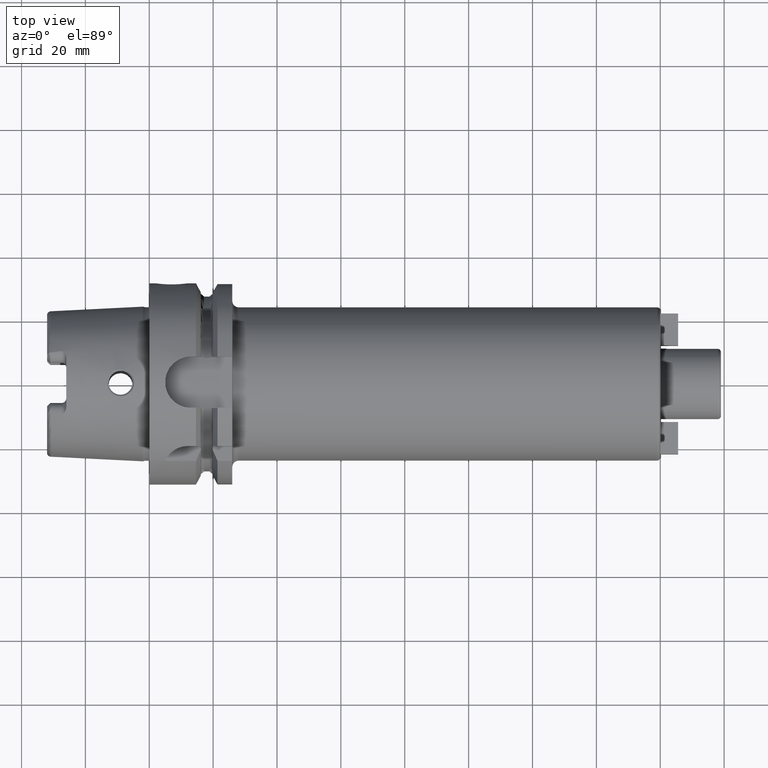
[diagram: clean part render]
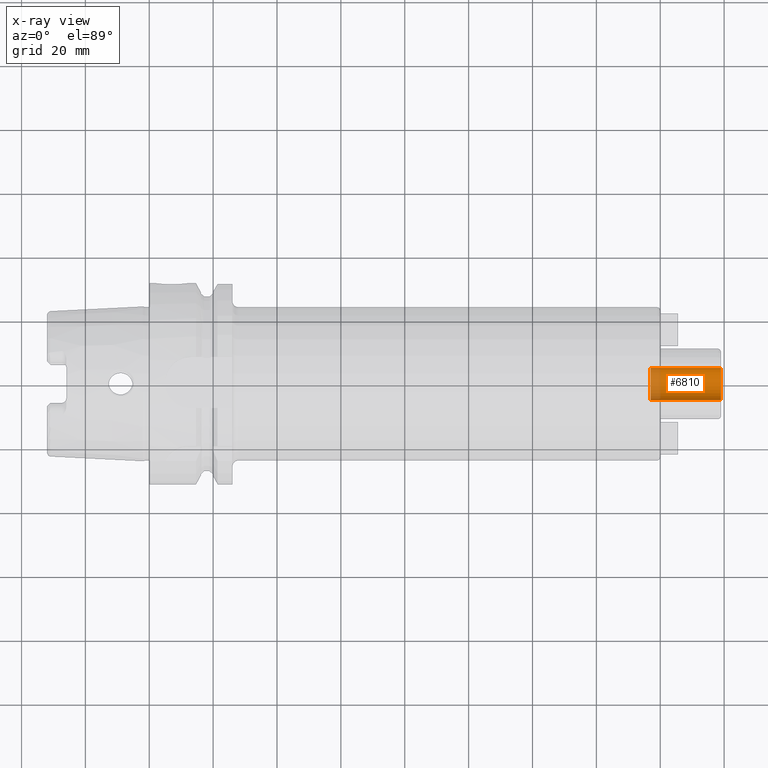
[diagram: x-ray — body ghosted, one internal face saturated and labeled with its STEP entity id]
A machine part, top view, then the same camera in x-ray: the body is ghosted and one INTERNAL B-rep face — a face not visible from any outside direction — is saturated and labeled: STEP entity #6810.
In plain terms, the highlighted cylindrical surface (edge-blend (fillet) strip) has radius 5 mm, axis along (1, 0, 0).
Its self-contained STEP definition (entity closure, byte-faithful):
#6745=CARTESIAN_POINT('',(1.79E2,0.E0,0.E0));
#6746=DIRECTION('',(-1.E0,0.E0,0.E0));
#6747=DIRECTION('',(0.E0,1.E0,0.E0));
#6748=AXIS2_PLACEMENT_3D('',#6745,#6746,#6747);
#6755=DIRECTION('',(-1.E0,0.E0,0.E0));
#6756=VECTOR('',#6755,2.2E1);
#6757=CARTESIAN_POINT('',(1.79E2,5.E0,0.E0));
#6758=LINE('',#6757,#6756);
#6759=DIRECTION('',(-1.E0,0.E0,0.E0));
#6760=VECTOR('',#6759,2.2E1);
#6761=CARTESIAN_POINT('',(1.79E2,-5.E0,0.E0));
#6762=LINE('',#6761,#6760);
#6763=CARTESIAN_POINT('',(1.57E2,0.E0,0.E0));
#6764=DIRECTION('',(1.E0,0.E0,0.E0));
#6765=DIRECTION('',(0.E0,-1.E0,0.E0));
#6766=AXIS2_PLACEMENT_3D('',#6763,#6764,#6765);
#6783=CARTESIAN_POINT('',(1.57E2,-5.E0,0.E0));
#6784=CARTESIAN_POINT('',(1.57E2,5.E0,0.E0));
#6785=VERTEX_POINT('',#6783);
#6786=VERTEX_POINT('',#6784);
#6787=CARTESIAN_POINT('',(1.79E2,-5.E0,0.E0));
#6788=CARTESIAN_POINT('',(1.79E2,5.E0,0.E0));
#6789=VERTEX_POINT('',#6787);
#6790=VERTEX_POINT('',#6788);
#6795=CARTESIAN_POINT('',(1.448186594876E2,0.E0,0.E0));
#6796=DIRECTION('',(1.E0,0.E0,0.E0));
#6797=DIRECTION('',(0.E0,-1.E0,0.E0));
#6798=AXIS2_PLACEMENT_3D('',#6795,#6796,#6797);
#6799=CYLINDRICAL_SURFACE('',#6798,5.E0);
#6801=ORIENTED_EDGE('',*,*,#6800,.T.);
#6803=ORIENTED_EDGE('',*,*,#6802,.T.);
#6805=ORIENTED_EDGE('',*,*,#6804,.T.);
#6807=ORIENTED_EDGE('',*,*,#6806,.F.);
#6808=EDGE_LOOP('',(#6801,#6803,#6805,#6807));
#6809=FACE_OUTER_BOUND('',#6808,.F.);
#6810=ADVANCED_FACE('',(#6809),#6799,.F.);
#6749=CIRCLE('',#6748,5.E0);
#6767=CIRCLE('',#6766,5.E0);
#6800=EDGE_CURVE('',#6790,#6789,#6749,.T.);
#6802=EDGE_CURVE('',#6789,#6785,#6762,.T.);
#6804=EDGE_CURVE('',#6785,#6786,#6767,.T.);
#6806=EDGE_CURVE('',#6790,#6786,#6758,.T.);